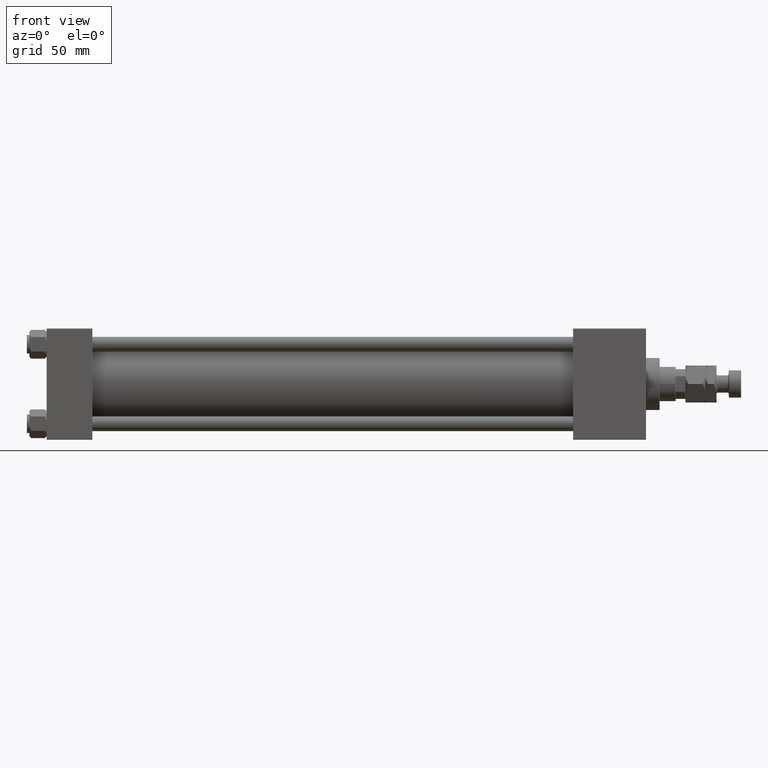
[diagram: clean part render]
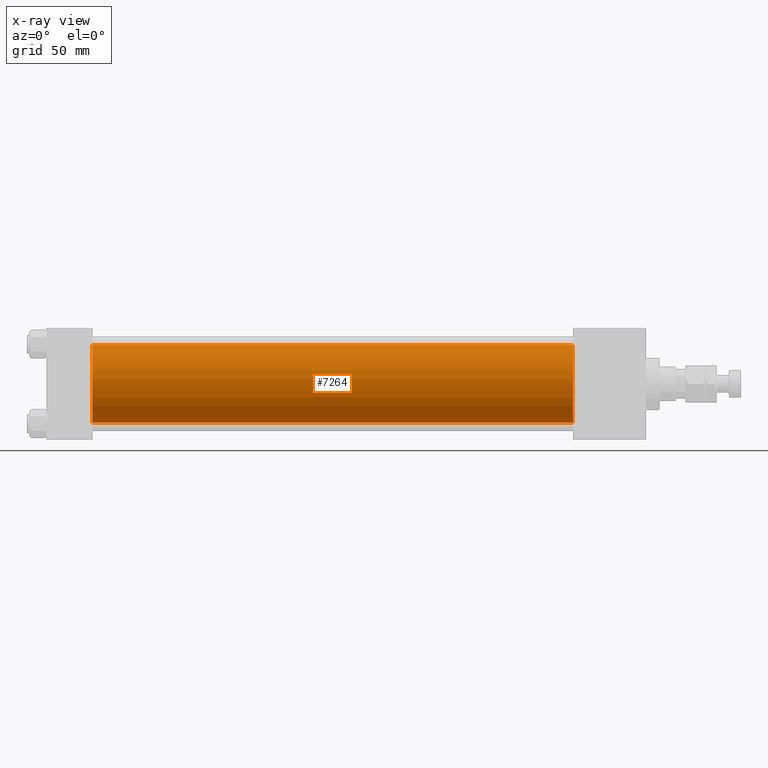
[diagram: x-ray — body ghosted, one internal face saturated and labeled with its STEP entity id]
A machine part, front view, then the same camera in x-ray: the body is ghosted and one INTERNAL B-rep face — a face not visible from any outside direction — is saturated and labeled: STEP entity #7264.
In plain terms, the highlighted cylindrical surface (partial cylindrical patch) has radius 31.5 mm, axis along (-1, -0, -0).
Its self-contained STEP definition (entity closure, byte-faithful):
#2084 = DIRECTION ( 'NONE',  ( 0.000000000000000000, 0.000000000000000000, -1.000000000000000000 ) ) ;
#2506 = EDGE_CURVE ( 'NONE', #40088, #39621, #28361, .T. ) ;
#2738 = DIRECTION ( 'NONE',  ( -1.000000000000000000, -0.000000000000000000, -0.000000000000000000 ) ) ;
#3755 = EDGE_CURVE ( 'NONE', #4564, #23027, #47303, .T. ) ;
#3876 = CARTESIAN_POINT ( 'NONE',  ( 426.0000000000000000, 1.255552203348951850E-15, -31.50000000000000000 ) ) ;
#4564 = VERTEX_POINT ( 'NONE', #49779 ) ;
#4643 = VECTOR ( 'NONE', #35986, 1000.000000000000000 ) ;
#4679 = VECTOR ( 'NONE', #48613, 1000.000000000000000 ) ;
#7264 = ADVANCED_FACE ( 'NONE', ( #50417 ), #21567, .F. ) ;
#8068 = AXIS2_PLACEMENT_3D ( 'NONE', #45626, #30062, #33493 ) ;
#9191 = EDGE_CURVE ( 'NONE', #4564, #40088, #45973, .T. ) ;
#11217 = CARTESIAN_POINT ( 'NONE',  ( 426.0000000000000000, -2.602085213965210642E-15, 31.50000000000000000 ) ) ;
#12073 = ORIENTED_EDGE ( 'NONE', *, *, #48451, .F. ) ;
#15515 = ORIENTED_EDGE ( 'NONE', *, *, #9191, .T. ) ;
#21392 = CARTESIAN_POINT ( 'NONE',  ( 37.00000000000000000, -2.602085213965210642E-15, 31.50000000000000000 ) ) ;
#21567 = CYLINDRICAL_SURFACE ( 'NONE', #25813, 31.50000000000000000 ) ;
#21909 = ORIENTED_EDGE ( 'NONE', *, *, #3755, .F. ) ;
#23027 = VERTEX_POINT ( 'NONE', #21392 ) ;
#24340 = CARTESIAN_POINT ( 'NONE',  ( 426.0000000000000000, 1.255552203348951850E-15, -31.50000000000000000 ) ) ;
#25813 = AXIS2_PLACEMENT_3D ( 'NONE', #37601, #2738, #45249 ) ;
#27067 = DIRECTION ( 'NONE',  ( 1.000000000000000000, 0.000000000000000000, 0.000000000000000000 ) ) ;
#28361 = LINE ( 'NONE', #3876, #4643 ) ;
#29113 = CIRCLE ( 'NONE', #8068, 31.50000000000000000 ) ;
#30062 = DIRECTION ( 'NONE',  ( 1.000000000000000000, 0.000000000000000000, 0.000000000000000000 ) ) ;
#32012 = ORIENTED_EDGE ( 'NONE', *, *, #2506, .T. ) ;
#33493 = DIRECTION ( 'NONE',  ( 0.000000000000000000, 0.000000000000000000, -1.000000000000000000 ) ) ;
#35986 = DIRECTION ( 'NONE',  ( -1.000000000000000000, -0.000000000000000000, -0.000000000000000000 ) ) ;
#37601 = CARTESIAN_POINT ( 'NONE',  ( 426.0000000000000000, -2.602085213965210642E-15, 0.000000000000000000 ) ) ;
#39621 = VERTEX_POINT ( 'NONE', #40843 ) ;
#40027 = AXIS2_PLACEMENT_3D ( 'NONE', #46573, #27067, #2084 ) ;
#40088 = VERTEX_POINT ( 'NONE', #24340 ) ;
#40843 = CARTESIAN_POINT ( 'NONE',  ( 37.00000000000000000, 1.255552203348951850E-15, -31.50000000000000000 ) ) ;
#45249 = DIRECTION ( 'NONE',  ( 0.000000000000000000, 0.000000000000000000, 1.000000000000000000 ) ) ;
#45626 = CARTESIAN_POINT ( 'NONE',  ( 37.00000000000000000, -2.602085213965210642E-15, 0.000000000000000000 ) ) ;
#45973 = CIRCLE ( 'NONE', #40027, 31.50000000000000000 ) ;
#46573 = CARTESIAN_POINT ( 'NONE',  ( 426.0000000000000000, -2.602085213965210642E-15, 0.000000000000000000 ) ) ;
#47303 = LINE ( 'NONE', #11217, #4679 ) ;
#48451 = EDGE_CURVE ( 'NONE', #23027, #39621, #29113, .T. ) ;
#48613 = DIRECTION ( 'NONE',  ( -1.000000000000000000, -0.000000000000000000, -0.000000000000000000 ) ) ;
#49779 = CARTESIAN_POINT ( 'NONE',  ( 426.0000000000000000, -2.602085213965210642E-15, 31.50000000000000000 ) ) ;
#50417 = FACE_OUTER_BOUND ( 'NONE', #51584, .T. ) ;
#51584 = EDGE_LOOP ( 'NONE', ( #15515, #32012, #12073, #21909 ) ) ;